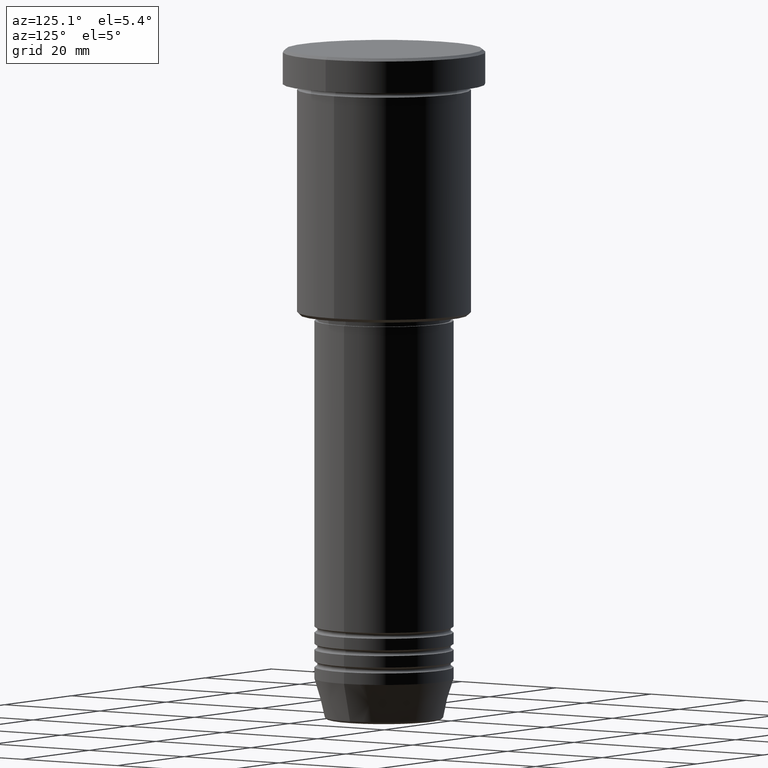
[diagram: clean part render]
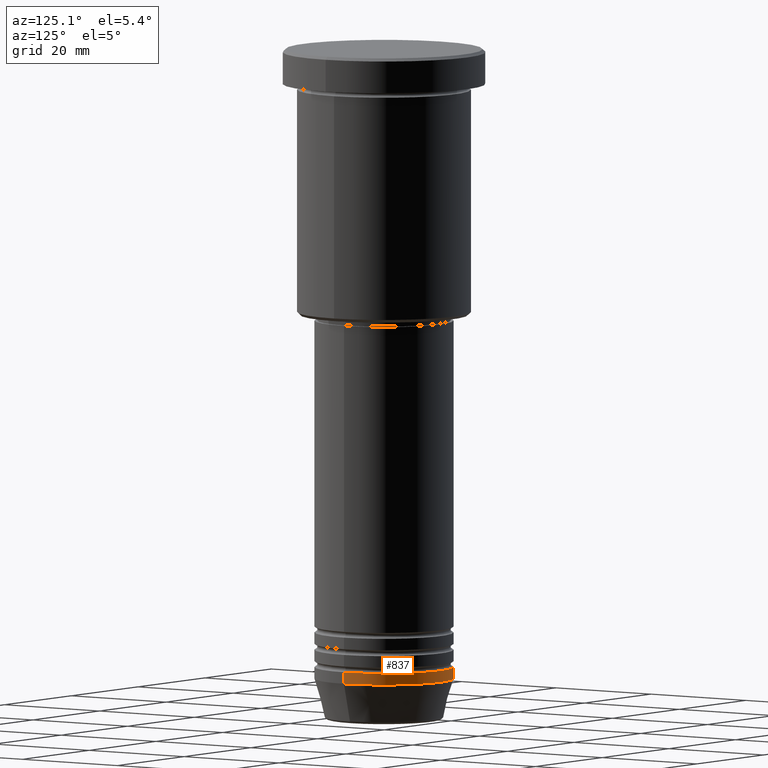
[diagram: same view with one face highlighted and labeled with its STEP entity id]
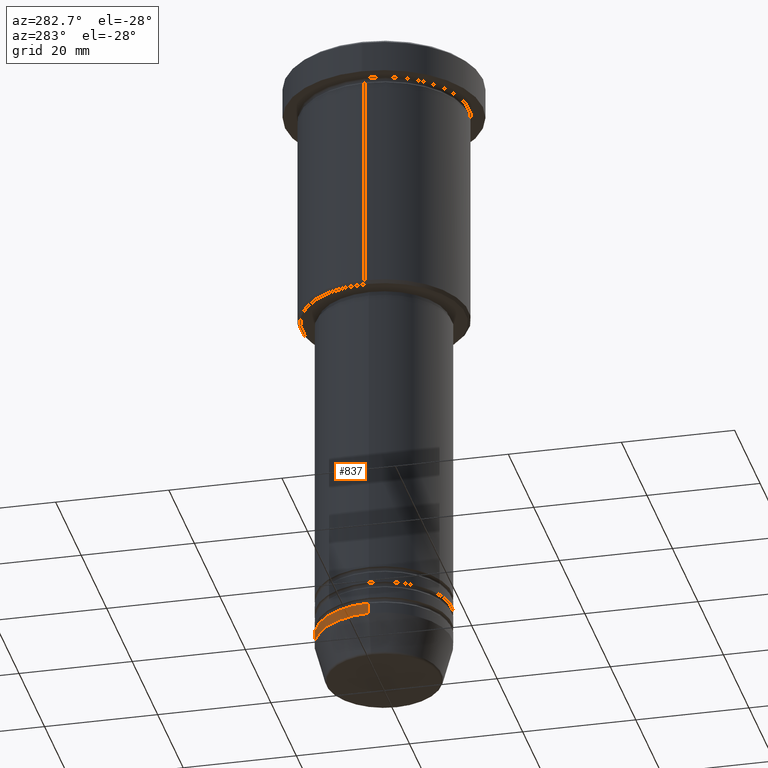
[diagram: same view with one face highlighted and labeled with its STEP entity id]
A machine part, auxiliary view. The second image highlights one B-rep face of the part: STEP entity #837.
A second angle (auxiliary view) of the same face is appended — the face is thin or edge-on in the first view.
In plain terms, the highlighted cylindrical surface (partial cylindrical patch) has radius 12 mm, axis along (-0, -0, 1).
Its self-contained STEP definition (entity closure, byte-faithful):
#34 = AXIS2_PLACEMENT_3D ( 'NONE', #603, #969, #63 ) ;
#63 = DIRECTION ( 'NONE',  ( 1.000000000000000000, 0.000000000000000000, 0.000000000000000000 ) ) ;
#72 = VECTOR ( 'NONE', #413, 1000.000000000000000 ) ;
#113 = VECTOR ( 'NONE', #538, 1000.000000000000000 ) ;
#197 = DIRECTION ( 'NONE',  ( 1.000000000000000000, 0.000000000000000000, 0.000000000000000000 ) ) ;
#206 = AXIS2_PLACEMENT_3D ( 'NONE', #1015, #548, #197 ) ;
#209 = CARTESIAN_POINT ( 'NONE',  ( 12.00000000000000000, 0.000000000000000000, -107.0000000000000142 ) ) ;
#223 = AXIS2_PLACEMENT_3D ( 'NONE', #543, #895, #1091 ) ;
#240 = EDGE_CURVE ( 'NONE', #775, #1124, #1054, .T. ) ;
#264 = CARTESIAN_POINT ( 'NONE',  ( 12.00000000000000000, 0.000000000000000000, 0.000000000000000000 ) ) ;
#274 = EDGE_CURVE ( 'NONE', #971, #775, #835, .T. ) ;
#287 = CYLINDRICAL_SURFACE ( 'NONE', #206, 12.00000000000000000 ) ;
#306 = EDGE_CURVE ( 'NONE', #498, #1124, #363, .T. ) ;
#337 = EDGE_CURVE ( 'NONE', #971, #498, #706, .T. ) ;
#363 = CIRCLE ( 'NONE', #223, 12.00000000000000000 ) ;
#413 = DIRECTION ( 'NONE',  ( -0.000000000000000000, -0.000000000000000000, 1.000000000000000000 ) ) ;
#498 = VERTEX_POINT ( 'NONE', #209 ) ;
#514 = ORIENTED_EDGE ( 'NONE', *, *, #306, .F. ) ;
#538 = DIRECTION ( 'NONE',  ( -0.000000000000000000, -0.000000000000000000, 1.000000000000000000 ) ) ;
#543 = CARTESIAN_POINT ( 'NONE',  ( 0.000000000000000000, 0.000000000000000000, -107.0000000000000142 ) ) ;
#548 = DIRECTION ( 'NONE',  ( -0.000000000000000000, -0.000000000000000000, 1.000000000000000000 ) ) ;
#560 = ORIENTED_EDGE ( 'NONE', *, *, #240, .T. ) ;
#579 = ORIENTED_EDGE ( 'NONE', *, *, #274, .T. ) ;
#603 = CARTESIAN_POINT ( 'NONE',  ( 0.000000000000000000, 0.000000000000000000, -109.0000000000000142 ) ) ;
#634 = CARTESIAN_POINT ( 'NONE',  ( -12.00000000000000000, 1.469576158976823947E-15, -109.0000000000000142 ) ) ;
#669 = EDGE_LOOP ( 'NONE', ( #579, #560, #514, #1131 ) ) ;
#706 = LINE ( 'NONE', #264, #113 ) ;
#775 = VERTEX_POINT ( 'NONE', #634 ) ;
#835 = CIRCLE ( 'NONE', #34, 12.00000000000000000 ) ;
#837 = ADVANCED_FACE ( 'NONE', ( #851 ), #287, .T. ) ;
#851 = FACE_OUTER_BOUND ( 'NONE', #669, .T. ) ;
#866 = CARTESIAN_POINT ( 'NONE',  ( -12.00000000000000000, 1.469576158976823947E-15, 0.000000000000000000 ) ) ;
#895 = DIRECTION ( 'NONE',  ( -0.000000000000000000, -0.000000000000000000, 1.000000000000000000 ) ) ;
#969 = DIRECTION ( 'NONE',  ( -0.000000000000000000, -0.000000000000000000, 1.000000000000000000 ) ) ;
#971 = VERTEX_POINT ( 'NONE', #972 ) ;
#972 = CARTESIAN_POINT ( 'NONE',  ( 12.00000000000000000, 0.000000000000000000, -109.0000000000000142 ) ) ;
#1015 = CARTESIAN_POINT ( 'NONE',  ( 0.000000000000000000, 0.000000000000000000, 0.000000000000000000 ) ) ;
#1036 = CARTESIAN_POINT ( 'NONE',  ( -12.00000000000000000, 1.469576158976823947E-15, -107.0000000000000142 ) ) ;
#1054 = LINE ( 'NONE', #866, #72 ) ;
#1091 = DIRECTION ( 'NONE',  ( 1.000000000000000000, 0.000000000000000000, 0.000000000000000000 ) ) ;
#1124 = VERTEX_POINT ( 'NONE', #1036 ) ;
#1131 = ORIENTED_EDGE ( 'NONE', *, *, #337, .F. ) ;